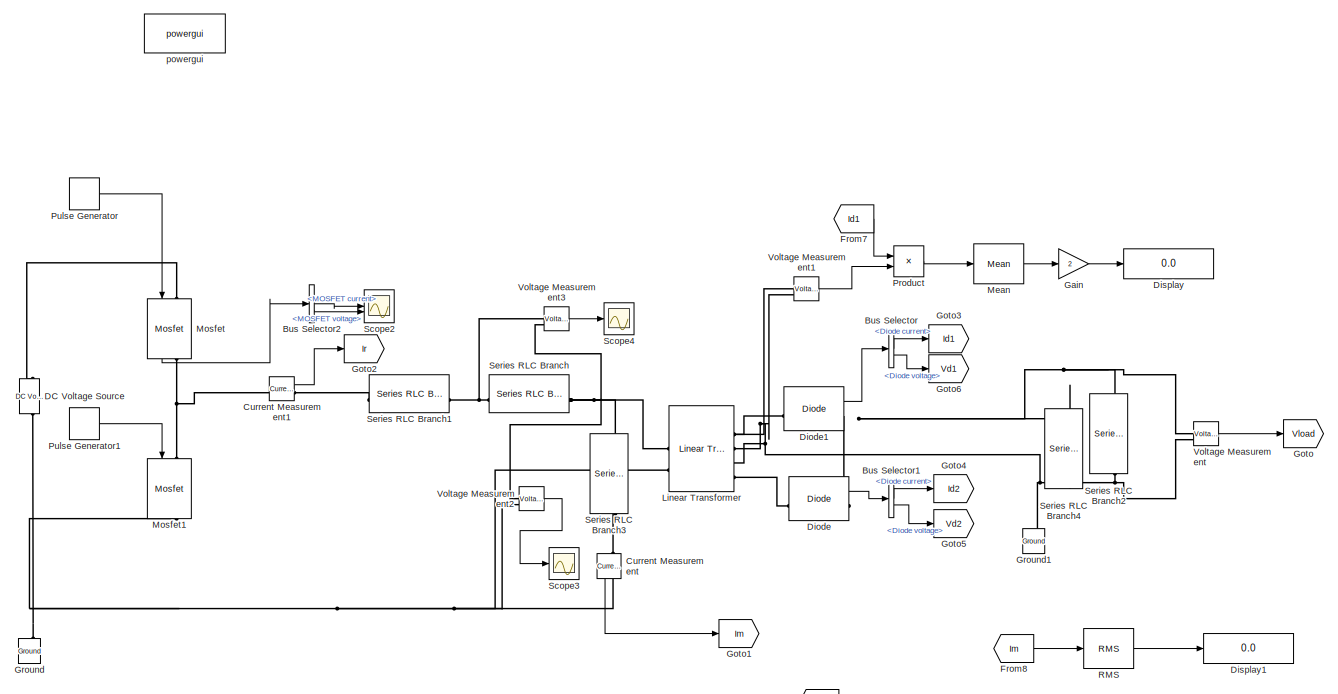
[diagram: root canvas - part 1/2, full width, middle band]
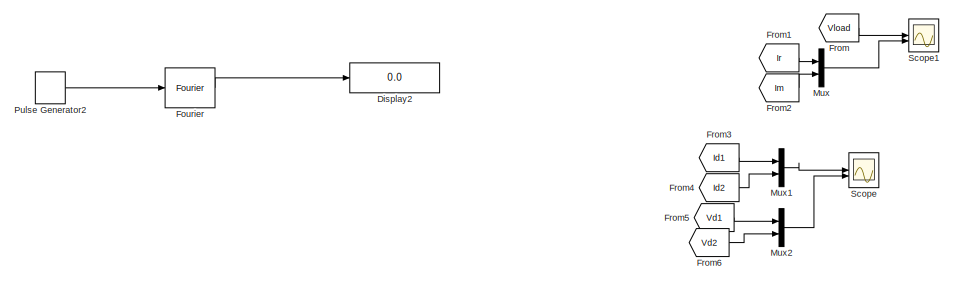
[diagram: root canvas - part 2/2, bottom center region]
MODEL slx_1e543be53147
KIND model
CONFIG AbsTol = auto
CONFIG EnableMultiTasking = off
CONFIG FixedStep = auto
CONFIG MaxStep = auto
CONFIG MinStep = auto
CONFIG RelTol = 1e-3
CONFIG SampleTimeConstraint = Unconstrained
CONFIG SolverName = ode23t
CONFIG StartTime = 0.0
CONFIG StopTime = 1e-3
BLOCK [BusSelector] Bus Selector
  OutputSignals = Diode current,Diode voltage
BLOCK [BusSelector] Bus Selector1
  OutputSignals = Diode current,Diode voltage
BLOCK [BusSelector] Bus Selector2
  OutputSignals = MOSFET current,MOSFET voltage
BLOCK [Reference] Current Measurement  REF=spsCurrentMeasurementLib/Current Measurement
  LibrarySourceBlock = sps_lib/Sensors and Measurements/Current Measurement
  NameLocation = left
  SourceBlock = spsCurrentMeasurementLib/Current Measurement
  SourceType = Current Measurement
  UserDataPersistent = on
BLOCK [Reference] Current Measurement1  REF=spsCurrentMeasurementLib/Current Measurement
  LibrarySourceBlock = sps_lib/Sensors and Measurements/Current Measurement
  SourceBlock = spsCurrentMeasurementLib/Current Measurement
  SourceType = Current Measurement
  UserDataPersistent = on
BLOCK [Reference] DC Voltage Source  REF=spsDCVoltageSourceLib/DC Voltage Source
  LibrarySourceBlock = sps_lib/Sources/DC Voltage Source
  SourceBlock = spsDCVoltageSourceLib/DC Voltage Source
  SourceType = DC Voltage Source
BLOCK [Reference] Diode  REF=spsDiodeLib/Diode
  LibrarySourceBlock = sps_lib/Power Electronics/Diode
  SourceBlock = spsDiodeLib/Diode
  SourceType = Diode
BLOCK [Reference] Diode1  REF=spsDiodeLib/Diode
  LibrarySourceBlock = sps_lib/Power Electronics/Diode
  SourceBlock = spsDiodeLib/Diode
  SourceType = Diode
BLOCK [Display] Display
  Decimation = 1
BLOCK [Display] Display1
  Decimation = 1
BLOCK [Display] Display2
  Decimation = 1
BLOCK [Reference] Fourier  REF=spsFourierLib/Fourier
  LibrarySourceBlock = sps_lib/Sensors and Measurements/Fourier
  SourceBlock = spsFourierLib/Fourier
  SourceType = Fourier
BLOCK [From] From
  GotoTag = Vload
BLOCK [From] From1
  GotoTag = Ir
BLOCK [From] From2
  GotoTag = Im
BLOCK [From] From3
  GotoTag = Id1
BLOCK [From] From4
  GotoTag = Id2
BLOCK [From] From5
  GotoTag = Vd1
BLOCK [From] From6
  GotoTag = Vd2
BLOCK [From] From7
  GotoTag = Id1
BLOCK [From] From8
  GotoTag = Im
BLOCK [Gain] Gain
  Gain = 2
BLOCK [Goto] Goto
  GotoTag = Vload
BLOCK [Goto] Goto1
  GotoTag = Im
BLOCK [Goto] Goto2
  GotoTag = Ir
BLOCK [Goto] Goto3
  GotoTag = Id1
BLOCK [Goto] Goto4
  GotoTag = Id2
BLOCK [Goto] Goto5
  GotoTag = Vd2
BLOCK [Goto] Goto6
  GotoTag = Vd1
BLOCK [Reference] Ground  REF=spsGroundLib/Ground
  LibrarySourceBlock = sps_lib/Utilities/Ground
  NameLocation = right
  SourceBlock = spsGroundLib/Ground
  SourceType = Ground
BLOCK [Reference] Ground1  REF=spsGroundLib/Ground
  LibrarySourceBlock = sps_lib/Utilities/Ground
  NameLocation = right
  SourceBlock = spsGroundLib/Ground
  SourceType = Ground
BLOCK [Reference] Linear Transformer  REF=spsLinearTransformerLib/Linear Transformer
  LibrarySourceBlock = sps_lib/Power Grid Elements/Linear Transformer
  SourceBlock = spsLinearTransformerLib/Linear Transformer
  SourceType = Linear Transformer
BLOCK [Reference] Mean  REF=spsMeanLib/Mean
  LibrarySourceBlock = sps_lib/Sensors and Measurements/Mean
  SourceBlock = spsMeanLib/Mean
  SourceType = Mean
BLOCK [Reference] Mosfet  REF=spsMosfetLib/Mosfet
  LibrarySourceBlock = sps_lib/Power Electronics/Mosfet
  NameLocation = left
  SourceBlock = spsMosfetLib/Mosfet
  SourceType = Mosfet
BLOCK [Reference] Mosfet1  REF=spsMosfetLib/Mosfet
  LibrarySourceBlock = sps_lib/Power Electronics/Mosfet
  NameLocation = left
  SourceBlock = spsMosfetLib/Mosfet
  SourceType = Mosfet
BLOCK [Mux] Mux
  DisplayOption = bar
  Inputs = 2
BLOCK [Mux] Mux1
  DisplayOption = bar
  Inputs = 2
BLOCK [Mux] Mux2
  DisplayOption = bar
  Inputs = 2
BLOCK [Product] Product
BLOCK [DiscretePulseGenerator] Pulse Generator
  Period = Ts
  PulseType = Time based
  PulseWidth = (Ts/2-td)/Ts*100
BLOCK [DiscretePulseGenerator] Pulse Generator1
  Period = Ts
  PhaseDelay = Ts/2
  PulseType = Time based
  PulseWidth = (Ts/2-td)/Ts*100
BLOCK [DiscretePulseGenerator] Pulse Generator2
  Amplitude = 310
  Period = Ts
  PulseType = Time based
  PulseWidth = 50
BLOCK [Reference] RMS  REF=spsRMSLib/RMS
  LibrarySourceBlock = sps_lib/Sensors and Measurements/RMS
  SourceBlock = spsRMSLib/RMS
  SourceType = RMS
BLOCK [Scope] Scope
  Floating = off
  NumInputPorts = 2
  ScopeSpecificationString = Simulink.scopes.TimeScopeBlockCfg('CurrentConfiguration', extmgr.ConfigurationSet(extmgr.Configuration('Core','General UI',true),extmgr.Configuration('Core','Source UI',true),extmgr.Configuration('Sources','WiredSimulink',true),extmgr.Configuration('Visuals','Time Domain',true,'SerializedDisplays',{struct('MinYLimReal','-5.53147','MaxYLimReal','47.21029','YLabelReal','','MinYLimMag','0.00000','Max...<+2415ch>
BLOCK [Scope] Scope1
  Floating = off
  NumInputPorts = 2
  ScopeSpecificationString = Simulink.scopes.TimeScopeBlockCfg('CurrentConfiguration', extmgr.ConfigurationSet(extmgr.Configuration('Core','General UI',true),extmgr.Configuration('Core','Source UI',true),extmgr.Configuration('Sources','WiredSimulink',true,'DataLoggingVariableName','ScopeData1'),extmgr.Configuration('Visuals','Time Domain',true,'SerializedDisplays',{struct('MinYLimReal','-3.74865','MaxYLimReal','33.73783','YLa...<+2146ch>
BLOCK [Scope] Scope2
  Floating = off
  NumInputPorts = 2
  ScopeSpecificationString = Simulink.scopes.TimeScopeBlockCfg('CurrentConfiguration', extmgr.ConfigurationSet(extmgr.Configuration('Core','General UI',true),extmgr.Configuration('Core','Source UI',true),extmgr.Configuration('Sources','WiredSimulink',true,'DataLoggingVariableName','ScopeData2'),extmgr.Configuration('Visuals','Time Domain',true,'SerializedDisplays',{struct('MinYLimReal','-40.98745','MaxYLimReal','55.85554','YL...<+2119ch>
BLOCK [Scope] Scope3
  Floating = off
  NumInputPorts = 1
  ScopeSpecificationString = Simulink.scopes.TimeScopeBlockCfg('CurrentConfiguration', extmgr.ConfigurationSet(extmgr.Configuration('Core','General UI',true),extmgr.Configuration('Core','Source UI',true),extmgr.Configuration('Sources','WiredSimulink',true,'DataLoggingVariableName','ScopeData3'),extmgr.Configuration('Visuals','Time Domain',true,'SerializedDisplays',{struct('MinYLimReal','-175.98986','MaxYLimReal','217.75157','...<+1437ch>
BLOCK [Scope] Scope4
  Floating = off
  NumInputPorts = 1
  ScopeSpecificationString = Simulink.scopes.TimeScopeBlockCfg('CurrentConfiguration', extmgr.ConfigurationSet(extmgr.Configuration('Core','General UI',true),extmgr.Configuration('Core','Source UI',true),extmgr.Configuration('Sources','WiredSimulink',true,'DataLoggingVariableName','ScopeData4'),extmgr.Configuration('Visuals','Time Domain',true,'SerializedDisplays',{struct('MinYLimReal','-257.03997','MaxYLimReal','264.12512','...<+1437ch>
BLOCK [Reference] Series RLC Branch  REF=spsSeriesRLCBranchLib/Series RLC Branch
  LibrarySourceBlock = sps_lib/Passives/Series RLC Branch
  SourceBlock = spsSeriesRLCBranchLib/Series RLC Branch
  SourceType = Series RLC Branch
BLOCK [Reference] Series RLC Branch1  REF=spsSeriesRLCBranchLib/Series RLC Branch
  LibrarySourceBlock = sps_lib/Passives/Series RLC Branch
  SourceBlock = spsSeriesRLCBranchLib/Series RLC Branch
  SourceType = Series RLC Branch
BLOCK [Reference] Series RLC Branch2  REF=spsSeriesRLCBranchLib/Series RLC Branch
  LibrarySourceBlock = sps_lib/Passives/Series RLC Branch
  NameLocation = left
  SourceBlock = spsSeriesRLCBranchLib/Series RLC Branch
  SourceType = Series RLC Branch
BLOCK [Reference] Series RLC Branch3  REF=spsSeriesRLCBranchLib/Series RLC Branch
  LibrarySourceBlock = sps_lib/Passives/Series RLC Branch
  NameLocation = left
  SourceBlock = spsSeriesRLCBranchLib/Series RLC Branch
  SourceType = Series RLC Branch
BLOCK [Reference] Series RLC Branch4  REF=spsSeriesRLCBranchLib/Series RLC Branch
  LibrarySourceBlock = sps_lib/Passives/Series RLC Branch
  NameLocation = left
  SourceBlock = spsSeriesRLCBranchLib/Series RLC Branch
  SourceType = Series RLC Branch
BLOCK [Reference] Voltage Measurement  REF=spsVoltageMeasurementLib/Voltage Measurement
  LibrarySourceBlock = sps_lib/Sensors and Measurements/Voltage Measurement
  SourceBlock = spsVoltageMeasurementLib/Voltage Measurement
  SourceType = Voltage Measurement
  UserDataPersistent = on
BLOCK [Reference] Voltage Measurement1  REF=spsVoltageMeasurementLib/Voltage Measurement
  LibrarySourceBlock = sps_lib/Sensors and Measurements/Voltage Measurement
  SourceBlock = spsVoltageMeasurementLib/Voltage Measurement
  SourceType = Voltage Measurement
  UserDataPersistent = on
BLOCK [Reference] Voltage Measurement2  REF=spsVoltageMeasurementLib/Voltage Measurement
  LibrarySourceBlock = sps_lib/Sensors and Measurements/Voltage Measurement
  SourceBlock = spsVoltageMeasurementLib/Voltage Measurement
  SourceType = Voltage Measurement
  UserDataPersistent = on
BLOCK [Reference] Voltage Measurement3  REF=spsVoltageMeasurementLib/Voltage Measurement
  LibrarySourceBlock = sps_lib/Sensors and Measurements/Voltage Measurement
  SourceBlock = spsVoltageMeasurementLib/Voltage Measurement
  SourceType = Voltage Measurement
  UserDataPersistent = on
BLOCK [Reference] powergui  REF=sps_lib/powergui
  Priority = 1
  SourceBlock = sps_lib/powergui
  SourceType = PSB option menu block
LINE Bus Selector1:1 -> Goto4:1
LINE Bus Selector1:2 -> Goto5:1
LINE Bus Selector2:1 -> Scope2:1
LINE Bus Selector2:2 -> Scope2:2
LINE Bus Selector:1 -> Goto3:1
LINE Bus Selector:2 -> Goto6:1
LINE Current Measurement1:1 -> Goto2:1
LINE Current Measurement:1 -> Goto1:1
LINE Diode1:1 -> Bus Selector:1
LINE Diode:1 -> Bus Selector1:1
LINE Fourier:1 -> Display2:1
LINE From1:1 -> Mux:1
LINE From2:1 -> Mux:2
LINE From3:1 -> Mux1:1
LINE From4:1 -> Mux1:2
LINE From5:1 -> Mux2:1
LINE From6:1 -> Mux2:2
LINE From7:1 -> Product:1
LINE From8:1 -> RMS:1
LINE From:1 -> Scope1:1
LINE Gain:1 -> Display:1
LINE Mean:1 -> Gain:1
LINE Mosfet:1 -> Bus Selector2:1
LINE Mux1:1 -> Scope:1
LINE Mux2:1 -> Scope:2
LINE Mux:1 -> Scope1:2
LINE Product:1 -> Mean:1
LINE Pulse Generator1:1 -> Mosfet1:1
LINE Pulse Generator2:1 -> Fourier:1
LINE Pulse Generator:1 -> Mosfet:1
LINE RMS:1 -> Display1:1
LINE Voltage Measurement1:1 -> Product:2
LINE Voltage Measurement2:1 -> Scope3:1
LINE Voltage Measurement3:1 -> Scope4:1
LINE Voltage Measurement:1 -> Goto:1
PNET net1: Current Measurement1:LConn1 -- Mosfet1:LConn1 -- Mosfet:RConn1
PLINE Current Measurement1:RConn1 -- Series RLC Branch1:LConn1
PLINE Current Measurement:LConn1 -- Series RLC Branch3:RConn1
PNET net2: Current Measurement:RConn1 -- DC Voltage Source:LConn1 -- Ground:LConn1 -- Linear Transformer:LConn2 -- Mosfet1:RConn1 -- Voltage Measurement2:LConn2
PLINE DC Voltage Source:RConn1 -- Mosfet:LConn1
PNET net3: Diode1:LConn1 -- Linear Transformer:RConn1 -- Voltage Measurement1:LConn1
PNET net4: Diode1:RConn1 -- Diode:RConn1 -- Series RLC Branch2:LConn1 -- Series RLC Branch4:LConn1 -- Voltage Measurement:LConn1
PLINE Diode:LConn1 -- Linear Transformer:RConn4
PNET net5: Ground1:LConn1 -- Linear Transformer:RConn2 -- Linear Transformer:RConn3 -- Series RLC Branch2:RConn1 -- Series RLC Branch4:RConn1 -- Voltage Measurement1:LConn2 -- Voltage Measurement:LConn2
PNET net6: Linear Transformer:LConn1 -- Series RLC Branch3:LConn1 -- Series RLC Branch:RConn1 -- Voltage Measurement2:LConn1 -- Voltage Measurement3:LConn2
PNET net7: Series RLC Branch1:RConn1 -- Series RLC Branch:LConn1 -- Voltage Measurement3:LConn1
note: PNET lines group multi-terminal physical nets as a canonical sorted terminal list (undirected conserving connections); 2-terminal nets keep the pairwise PLINE form
